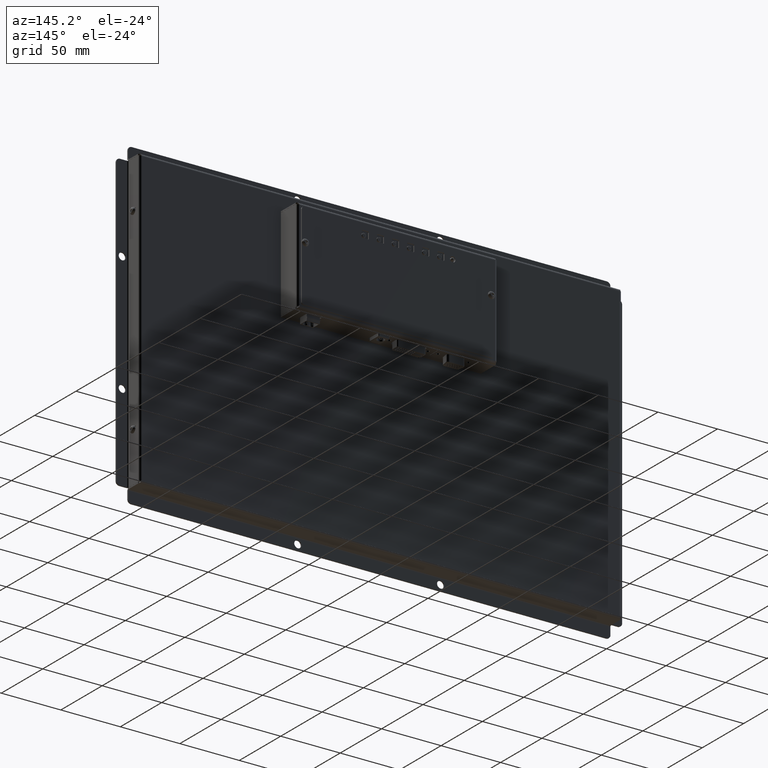
[diagram: clean part render]
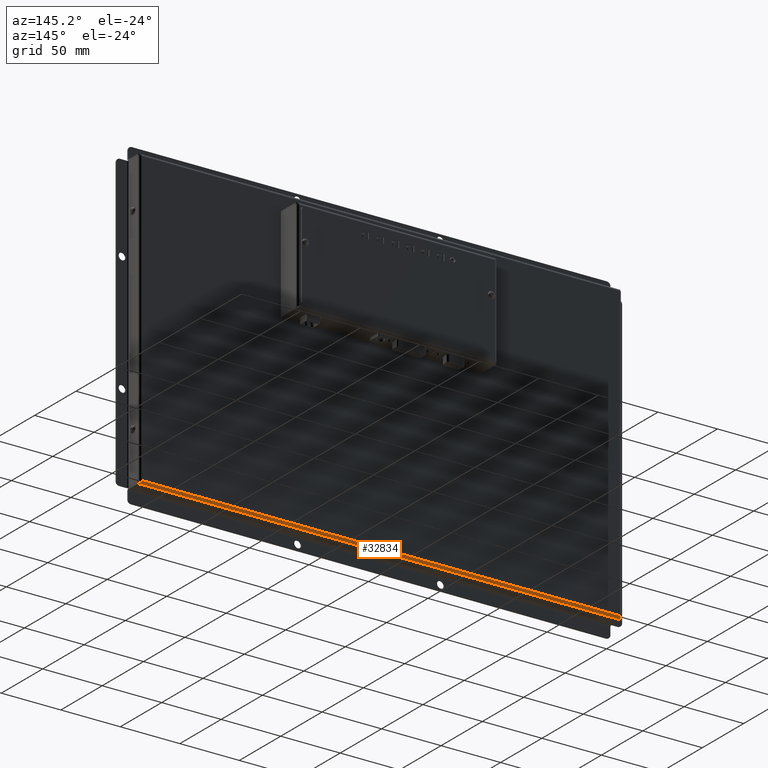
[diagram: same view with one face highlighted and labeled with its STEP entity id]
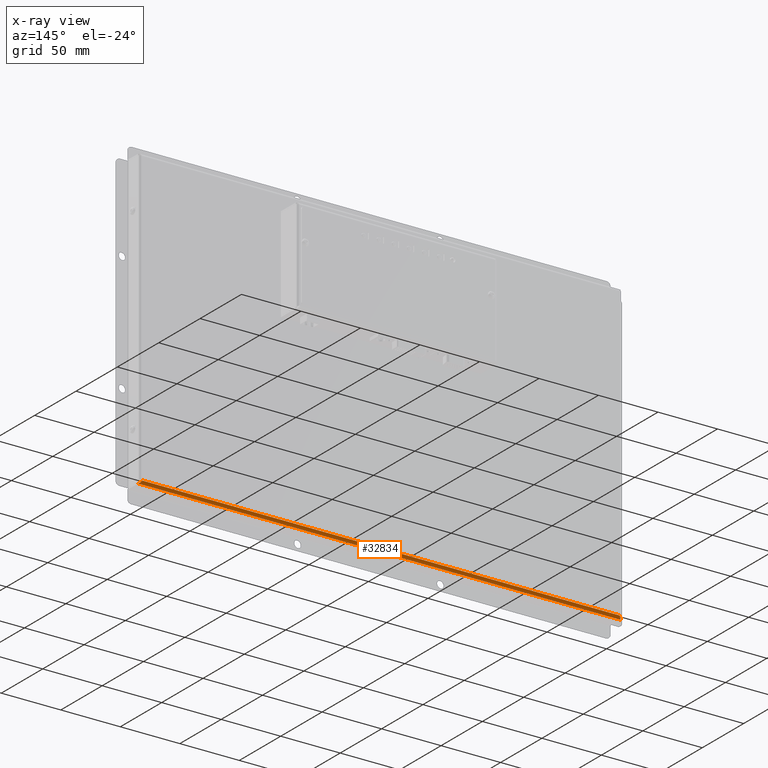
[diagram: x-ray of the same camera — body ghosted, the highlighted face saturated]
A machine part, auxiliary view. The second image highlights one B-rep face of the part: STEP entity #32834.
The next image is the same camera in x-ray: the body ghosted, the highlighted face saturated — about 0% of this face is hidden behind the body in this view.
In plain terms, the highlighted cylindrical surface (edge-blend (fillet) strip) has radius 2 mm, axis along (-1, 0, -0).
Its self-contained STEP definition (entity closure, byte-faithful):
#1706=B_SPLINE_CURVE_WITH_KNOTS('',3,(#48426,#48427,#48428,#48429,#48430,
#48431,#48432),.UNSPECIFIED.,.F.,.F.,(4,3,4),(-1.,-0.57142857142857,0.),
 .UNSPECIFIED.);
#1707=B_SPLINE_CURVE_WITH_KNOTS('',3,(#48434,#48435,#48436,#48437,#48438,
#48439,#48440),.UNSPECIFIED.,.F.,.F.,(4,3,4),(-1.,-0.571428571428569,0.),
 .UNSPECIFIED.);
#3489=FACE_OUTER_BOUND('',#5368,.T.);
#5368=EDGE_LOOP('',(#23437,#23438,#23439,#23440));
#7547=LINE('',#47969,#10686);
#7591=LINE('',#48441,#10730);
#10686=VECTOR('',#38736,10.);
#10730=VECTOR('',#38850,10.);
#15140=VERTEX_POINT('',#47966);
#15141=VERTEX_POINT('',#47968);
#15171=VERTEX_POINT('',#48416);
#15172=VERTEX_POINT('',#48433);
#18384=EDGE_CURVE('',#15140,#15141,#7547,.T.);
#18453=EDGE_CURVE('',#15141,#15171,#1706,.T.);
#18454=EDGE_CURVE('',#15140,#15172,#1707,.T.);
#18455=EDGE_CURVE('',#15171,#15172,#7591,.T.);
#23437=ORIENTED_EDGE('',*,*,#18453,.F.);
#23438=ORIENTED_EDGE('',*,*,#18384,.F.);
#23439=ORIENTED_EDGE('',*,*,#18454,.T.);
#23440=ORIENTED_EDGE('',*,*,#18455,.F.);
#32275=CYLINDRICAL_SURFACE('',#35275,2.);
#32834=ADVANCED_FACE('',(#3489),#32275,.T.);
#35275=AXIS2_PLACEMENT_3D('',#48425,#38848,#38849);
#38736=DIRECTION('',(-1.,-8.77196548976972E-17,3.37261047015213E-33));
#38848=DIRECTION('center_axis',(1.,8.81020131134656E-17,0.));
#38849=DIRECTION('ref_axis',(0.,-2.58307048261274E-15,1.));
#38850=DIRECTION('',(1.,8.81020131134656E-17,0.));
#47966=CARTESIAN_POINT('',(202.625,-124.7,-1.00000000000007));
#47968=CARTESIAN_POINT('',(-202.625,-124.7,-0.99999999999996));
#47969=CARTESIAN_POINT('',(2.73179647680909E-14,-124.7,-1.00000000000001));
#48416=CARTESIAN_POINT('',(-200.625,-122.7,1.));
#48425=CARTESIAN_POINT('Origin',(-100.3125,-122.7,-1.));
#48426=CARTESIAN_POINT('Ctrl Pts',(-202.625,-124.7,-0.999999999999959));
#48427=CARTESIAN_POINT('Ctrl Pts',(-202.339285714287,-124.7,-0.551201049487194));
#48428=CARTESIAN_POINT('Ctrl Pts',(-202.053571428572,-124.543278529548,
-0.10163689692865));
#48429=CARTESIAN_POINT('Ctrl Pts',(-201.767857142858,-124.263452756343,
0.247501031914095));
#48430=CARTESIAN_POINT('Ctrl Pts',(-201.386904761905,-123.890351725404,
0.713018270371087));
#48431=CARTESIAN_POINT('Ctrl Pts',(-201.005952380954,-123.298398600683,
0.999999999999997));
#48432=CARTESIAN_POINT('Ctrl Pts',(-200.625,-122.7,0.999999999999998));
#48433=CARTESIAN_POINT('',(200.625,-122.7,1.));
#48434=CARTESIAN_POINT('Ctrl Pts',(202.625,-124.7,-1.00000000000007));
#48435=CARTESIAN_POINT('Ctrl Pts',(202.33928571428,-124.7,-0.551201049487337));
#48436=CARTESIAN_POINT('Ctrl Pts',(202.05357142857,-124.543278529548,-0.10163689692873));
#48437=CARTESIAN_POINT('Ctrl Pts',(201.767857142855,-124.263452756343,0.24750103191405));
#48438=CARTESIAN_POINT('Ctrl Pts',(201.386904761902,-123.890351725404,0.713018270371087));
#48439=CARTESIAN_POINT('Ctrl Pts',(201.005952380943,-123.298398600683,0.999999999999988));
#48440=CARTESIAN_POINT('Ctrl Pts',(200.625,-122.7,0.999999999999998));
#48441=CARTESIAN_POINT('',(-100.930056127236,-122.7,1.));